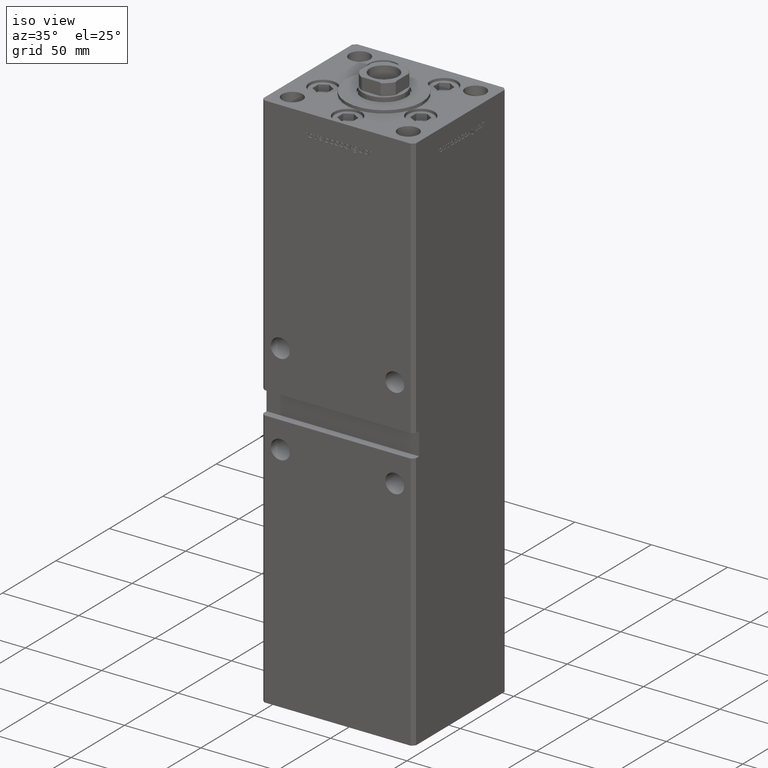
[diagram: clean part render]
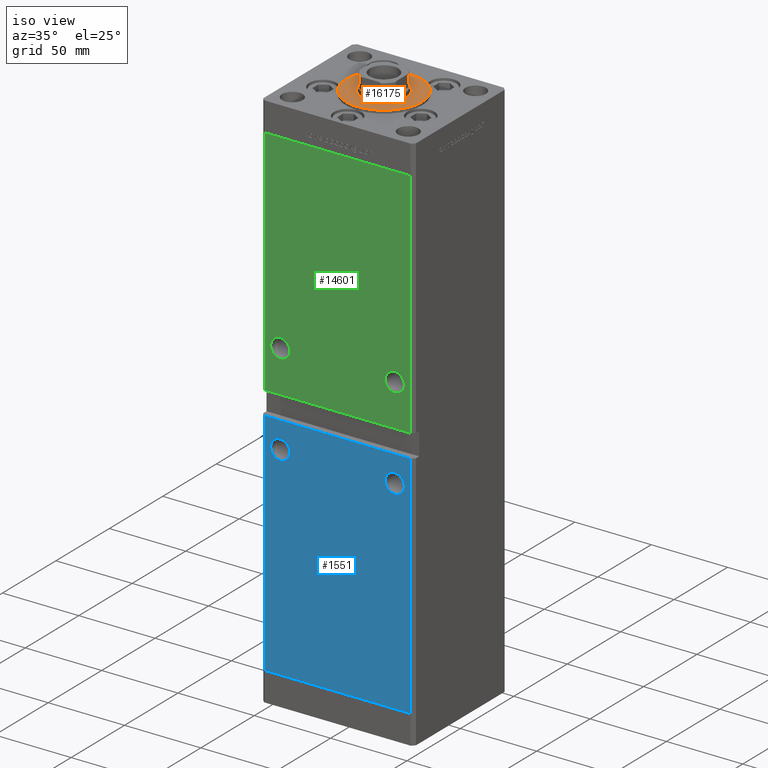
[diagram: same view with three faces highlighted in distinct colors, each labeled with its STEP entity id]
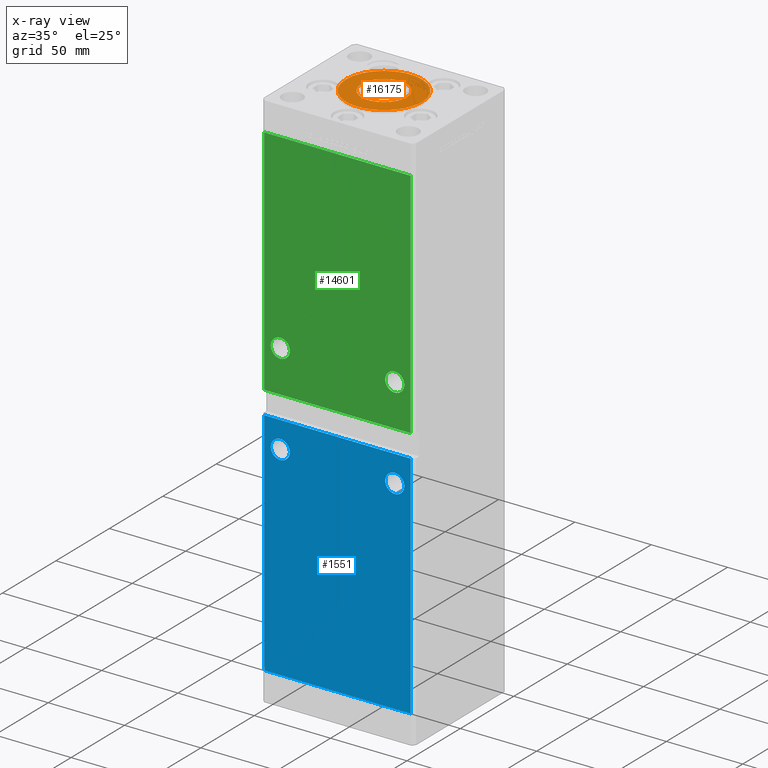
[diagram: x-ray of the same camera — body ghosted, the three highlighted faces saturated]
A machine part, iso view with three faces highlighted in distinct colors.
The next image is the same camera in x-ray (body ghosted, the three faces saturated) — at least one of them is partly hidden behind the body in this view.
Their STEP definitions:

[orange] entity #16175 — the highlighted planar face has unit normal (0, 0, 1).
#13 = EDGE_CURVE ( 'NONE', #21800, #1508, #15795, .T. ) ;
#386 = AXIS2_PLACEMENT_3D ( 'NONE', #31879, #23035, #44521 ) ;
#1508 = VERTEX_POINT ( 'NONE', #10641 ) ;
#2179 = DIRECTION ( 'NONE',  ( 1.000000000000000000, 0.000000000000000000, -0.000000000000000000 ) ) ;
#3743 = DIRECTION ( 'NONE',  ( 1.000000000000000000, 0.000000000000000000, 0.000000000000000000 ) ) ;
#7221 = CARTESIAN_POINT ( 'NONE',  ( 0.000000000000000000, -6.938893903907228378E-15, 2.000000000000000000 ) ) ;
#7259 = CIRCLE ( 'NONE', #386, 14.75000000000000178 ) ;
#7325 = CARTESIAN_POINT ( 'NONE',  ( -14.75000000000000178, -5.132539875164881787E-15, 2.000000000000000000 ) ) ;
#7763 = DIRECTION ( 'NONE',  ( 1.000000000000000000, 0.000000000000000000, 0.000000000000000000 ) ) ;
#8135 = CARTESIAN_POINT ( 'NONE',  ( -25.00000000000000000, -6.938893903907228378E-15, 2.000000000000000000 ) ) ;
#10407 = EDGE_CURVE ( 'NONE', #24324, #12368, #17324, .T. ) ;
#10641 = CARTESIAN_POINT ( 'NONE',  ( 25.00000000000000000, -3.877276906038844941E-15, 2.000000000000000000 ) ) ;
#10724 = DIRECTION ( 'NONE',  ( 0.000000000000000000, 0.000000000000000000, 1.000000000000000000 ) ) ;
#12368 = VERTEX_POINT ( 'NONE', #7325 ) ;
#14542 = FACE_OUTER_BOUND ( 'NONE', #22095, .T. ) ;
#15190 = DIRECTION ( 'NONE',  ( 1.000000000000000000, 0.000000000000000000, 0.000000000000000000 ) ) ;
#15208 = EDGE_CURVE ( 'NONE', #1508, #21800, #32786, .T. ) ;
#15795 = CIRCLE ( 'NONE', #22653, 25.00000000000000000 ) ;
#16175 = ADVANCED_FACE ( 'NONE', ( #42751, #14542 ), #27850, .T. ) ;
#17324 = CIRCLE ( 'NONE', #33611, 14.75000000000000178 ) ;
#18304 = CARTESIAN_POINT ( 'NONE',  ( 0.000000000000000000, -6.938893903907228378E-15, 2.000000000000000000 ) ) ;
#21218 = EDGE_CURVE ( 'NONE', #12368, #24324, #7259, .T. ) ;
#21800 = VERTEX_POINT ( 'NONE', #8135 ) ;
#22095 = EDGE_LOOP ( 'NONE', ( #34695, #29843 ) ) ;
#22653 = AXIS2_PLACEMENT_3D ( 'NONE', #48480, #23228, #15190 ) ;
#23035 = DIRECTION ( 'NONE',  ( 0.000000000000000000, 0.000000000000000000, 1.000000000000000000 ) ) ;
#23228 = DIRECTION ( 'NONE',  ( 0.000000000000000000, 0.000000000000000000, 1.000000000000000000 ) ) ;
#24153 = CARTESIAN_POINT ( 'NONE',  ( 0.000000000000000000, -6.938893903907228378E-15, 2.000000000000000000 ) ) ;
#24324 = VERTEX_POINT ( 'NONE', #51241 ) ;
#26773 = AXIS2_PLACEMENT_3D ( 'NONE', #24153, #40539, #3743 ) ;
#27850 = PLANE ( 'NONE',  #51701 ) ;
#29843 = ORIENTED_EDGE ( 'NONE', *, *, #15208, .T. ) ;
#31879 = CARTESIAN_POINT ( 'NONE',  ( 0.000000000000000000, -6.938893903907228378E-15, 2.000000000000000000 ) ) ;
#32786 = CIRCLE ( 'NONE', #26773, 25.00000000000000000 ) ;
#33611 = AXIS2_PLACEMENT_3D ( 'NONE', #7221, #10724, #7763 ) ;
#34695 = ORIENTED_EDGE ( 'NONE', *, *, #13, .T. ) ;
#35922 = DIRECTION ( 'NONE',  ( 0.000000000000000000, 0.000000000000000000, 1.000000000000000000 ) ) ;
#36267 = ORIENTED_EDGE ( 'NONE', *, *, #21218, .F. ) ;
#38647 = EDGE_LOOP ( 'NONE', ( #48857, #36267 ) ) ;
#40539 = DIRECTION ( 'NONE',  ( 0.000000000000000000, 0.000000000000000000, 1.000000000000000000 ) ) ;
#42751 = FACE_BOUND ( 'NONE', #38647, .T. ) ;
#44521 = DIRECTION ( 'NONE',  ( 1.000000000000000000, 0.000000000000000000, 0.000000000000000000 ) ) ;
#48480 = CARTESIAN_POINT ( 'NONE',  ( 0.000000000000000000, -6.938893903907228378E-15, 2.000000000000000000 ) ) ;
#48857 = ORIENTED_EDGE ( 'NONE', *, *, #10407, .F. ) ;
#51241 = CARTESIAN_POINT ( 'NONE',  ( 14.75000000000000178, -6.938893903907228378E-15, 2.000000000000000000 ) ) ;
#51701 = AXIS2_PLACEMENT_3D ( 'NONE', #18304, #35922, #2179 ) ;

[blue] entity #1551 — the highlighted planar face has unit normal (0, 1, 0).
#487 = EDGE_CURVE ( 'NONE', #8644, #1438, #15525, .T. ) ;
#898 = EDGE_CURVE ( 'NONE', #1438, #2993, #41999, .T. ) ;
#1017 = VERTEX_POINT ( 'NONE', #30653 ) ;
#1438 = VERTEX_POINT ( 'NONE', #27009 ) ;
#1551 = ADVANCED_FACE ( 'NONE', ( #35340, #35083, #51480 ), #47444, .F. ) ;
#1792 = DIRECTION ( 'NONE',  ( 0.000000000000000000, 1.000000000000000000, 0.000000000000000000 ) ) ;
#2579 = DIRECTION ( 'NONE',  ( 0.000000000000000000, -0.000000000000000000, 1.000000000000000000 ) ) ;
#2993 = VERTEX_POINT ( 'NONE', #38734 ) ;
#3482 = CARTESIAN_POINT ( 'NONE',  ( -47.99999999999998579, -43.50000000000000000, 0.000000000000000000 ) ) ;
#4571 = CARTESIAN_POINT ( 'NONE',  ( -37.50000000000000000, -43.50000000000000000, 127.2500000000000000 ) ) ;
#7279 = LINE ( 'NONE', #19638, #25008 ) ;
#8041 = AXIS2_PLACEMENT_3D ( 'NONE', #35771, #47609, #43837 ) ;
#8644 = VERTEX_POINT ( 'NONE', #14949 ) ;
#9225 = DIRECTION ( 'NONE',  ( 0.000000000000000000, 1.000000000000000000, 0.000000000000000000 ) ) ;
#9353 = VERTEX_POINT ( 'NONE', #4571 ) ;
#9596 = CARTESIAN_POINT ( 'NONE',  ( -37.50000000000000000, -43.50000000000000000, 133.5000000000000000 ) ) ;
#10127 = EDGE_CURVE ( 'NONE', #8644, #49620, #7279, .T. ) ;
#10906 = CARTESIAN_POINT ( 'NONE',  ( -47.99999999999998579, -43.50000000000000000, 318.5000000000000000 ) ) ;
#11317 = EDGE_CURVE ( 'NONE', #49620, #2993, #52419, .T. ) ;
#14669 = VECTOR ( 'NONE', #52957, 1000.000000000000000 ) ;
#14949 = CARTESIAN_POINT ( 'NONE',  ( -47.99999999999998579, -43.50000000000000000, 151.0000000000000000 ) ) ;
#15525 = LINE ( 'NONE', #24107, #44091 ) ;
#16059 = DIRECTION ( 'NONE',  ( 1.000000000000000000, 0.000000000000000000, 0.000000000000000000 ) ) ;
#16687 = VECTOR ( 'NONE', #41463, 1000.000000000000000 ) ;
#17279 = EDGE_CURVE ( 'NONE', #9353, #1017, #43157, .T. ) ;
#18313 = ORIENTED_EDGE ( 'NONE', *, *, #898, .F. ) ;
#18458 = CIRCLE ( 'NONE', #36461, 6.250000000000005329 ) ;
#18564 = EDGE_CURVE ( 'NONE', #50627, #48959, #27701, .T. ) ;
#18611 = CIRCLE ( 'NONE', #28905, 6.250000000000005329 ) ;
#19638 = CARTESIAN_POINT ( 'NONE',  ( -47.99999999999998579, -43.50000000000000000, 318.5000000000000000 ) ) ;
#20314 = DIRECTION ( 'NONE',  ( 0.000000000000000000, 0.000000000000000000, 1.000000000000000000 ) ) ;
#20579 = CARTESIAN_POINT ( 'NONE',  ( -37.50000000000000000, -43.50000000000000000, 133.5000000000000000 ) ) ;
#24107 = CARTESIAN_POINT ( 'NONE',  ( -49.99999999999998579, -43.50000000000000000, 151.0000000000000000 ) ) ;
#25008 = VECTOR ( 'NONE', #36005, 1000.000000000000000 ) ;
#25494 = ORIENTED_EDGE ( 'NONE', *, *, #11317, .T. ) ;
#27009 = CARTESIAN_POINT ( 'NONE',  ( 47.99999999999995737, -43.50000000000000000, 151.0000000000000000 ) ) ;
#27701 = CIRCLE ( 'NONE', #8041, 6.250000000000005329 ) ;
#28905 = AXIS2_PLACEMENT_3D ( 'NONE', #46277, #9225, #42247 ) ;
#28994 = EDGE_CURVE ( 'NONE', #1017, #9353, #18458, .T. ) ;
#29764 = EDGE_LOOP ( 'NONE', ( #38538, #31182 ) ) ;
#30077 = ORIENTED_EDGE ( 'NONE', *, *, #33766, .T. ) ;
#30653 = CARTESIAN_POINT ( 'NONE',  ( -37.50000000000000000, -43.50000000000000000, 139.7500000000000000 ) ) ;
#31182 = ORIENTED_EDGE ( 'NONE', *, *, #17279, .T. ) ;
#31906 = CARTESIAN_POINT ( 'NONE',  ( 37.50000000000000000, -43.50000000000000000, 127.2500000000000000 ) ) ;
#33397 = CARTESIAN_POINT ( 'NONE',  ( 47.99999999999998579, -43.50000000000000000, 318.5000000000000000 ) ) ;
#33766 = EDGE_CURVE ( 'NONE', #48959, #50627, #18611, .T. ) ;
#35083 = FACE_BOUND ( 'NONE', #46413, .T. ) ;
#35340 = FACE_BOUND ( 'NONE', #29764, .T. ) ;
#35771 = CARTESIAN_POINT ( 'NONE',  ( 37.50000000000000000, -43.50000000000000000, 133.5000000000000000 ) ) ;
#36005 = DIRECTION ( 'NONE',  ( -0.000000000000000000, -0.000000000000000000, -1.000000000000000000 ) ) ;
#36461 = AXIS2_PLACEMENT_3D ( 'NONE', #9596, #1792, #50687 ) ;
#38368 = ORIENTED_EDGE ( 'NONE', *, *, #18564, .T. ) ;
#38528 = ORIENTED_EDGE ( 'NONE', *, *, #10127, .T. ) ;
#38538 = ORIENTED_EDGE ( 'NONE', *, *, #28994, .T. ) ;
#38734 = CARTESIAN_POINT ( 'NONE',  ( 47.99999999999998579, -43.50000000000000000, 0.000000000000000000 ) ) ;
#39334 = ORIENTED_EDGE ( 'NONE', *, *, #487, .F. ) ;
#40906 = EDGE_LOOP ( 'NONE', ( #18313, #39334, #38528, #25494 ) ) ;
#41423 = AXIS2_PLACEMENT_3D ( 'NONE', #20579, #53102, #20314 ) ;
#41463 = DIRECTION ( 'NONE',  ( -0.000000000000000000, -0.000000000000000000, -1.000000000000000000 ) ) ;
#41999 = LINE ( 'NONE', #33397, #16687 ) ;
#42247 = DIRECTION ( 'NONE',  ( 0.000000000000000000, 0.000000000000000000, 1.000000000000000000 ) ) ;
#43157 = CIRCLE ( 'NONE', #41423, 6.250000000000005329 ) ;
#43837 = DIRECTION ( 'NONE',  ( 0.000000000000000000, 0.000000000000000000, 1.000000000000000000 ) ) ;
#44059 = CARTESIAN_POINT ( 'NONE',  ( 37.50000000000000000, -43.50000000000000000, 139.7500000000000000 ) ) ;
#44091 = VECTOR ( 'NONE', #16059, 1000.000000000000000 ) ;
#44620 = CARTESIAN_POINT ( 'NONE',  ( -47.99999999999998579, -43.50000000000000000, 0.000000000000000000 ) ) ;
#45020 = AXIS2_PLACEMENT_3D ( 'NONE', #10906, #47705, #2579 ) ;
#46277 = CARTESIAN_POINT ( 'NONE',  ( 37.50000000000000000, -43.50000000000000000, 133.5000000000000000 ) ) ;
#46413 = EDGE_LOOP ( 'NONE', ( #38368, #30077 ) ) ;
#47444 = PLANE ( 'NONE',  #45020 ) ;
#47609 = DIRECTION ( 'NONE',  ( 0.000000000000000000, 1.000000000000000000, 0.000000000000000000 ) ) ;
#47705 = DIRECTION ( 'NONE',  ( 0.000000000000000000, 1.000000000000000000, 0.000000000000000000 ) ) ;
#48959 = VERTEX_POINT ( 'NONE', #31906 ) ;
#49620 = VERTEX_POINT ( 'NONE', #3482 ) ;
#50627 = VERTEX_POINT ( 'NONE', #44059 ) ;
#50687 = DIRECTION ( 'NONE',  ( 0.000000000000000000, 0.000000000000000000, 1.000000000000000000 ) ) ;
#51480 = FACE_OUTER_BOUND ( 'NONE', #40906, .T. ) ;
#52419 = LINE ( 'NONE', #44620, #14669 ) ;
#52957 = DIRECTION ( 'NONE',  ( 1.000000000000000000, 0.000000000000000000, 0.000000000000000000 ) ) ;
#53102 = DIRECTION ( 'NONE',  ( 0.000000000000000000, 1.000000000000000000, 0.000000000000000000 ) ) ;

[green] entity #14601 — the highlighted planar face has unit normal (0, 1, 0).
#314 = CARTESIAN_POINT ( 'NONE',  ( 37.50000000000000000, -43.50000000000000000, 199.7500000000000000 ) ) ;
#1232 = VECTOR ( 'NONE', #20535, 1000.000000000000000 ) ;
#1332 = EDGE_CURVE ( 'NONE', #1500, #37170, #44126, .T. ) ;
#1500 = VERTEX_POINT ( 'NONE', #6885 ) ;
#2035 = LINE ( 'NONE', #34277, #43459 ) ;
#2382 = DIRECTION ( 'NONE',  ( 0.000000000000000000, 0.000000000000000000, 1.000000000000000000 ) ) ;
#2540 = EDGE_CURVE ( 'NONE', #46309, #46536, #31312, .T. ) ;
#3553 = EDGE_CURVE ( 'NONE', #30568, #20317, #44948, .T. ) ;
#3850 = DIRECTION ( 'NONE',  ( -1.000000000000000000, -0.000000000000000000, -0.000000000000000000 ) ) ;
#3974 = VECTOR ( 'NONE', #43196, 1000.000000000000000 ) ;
#4077 = CARTESIAN_POINT ( 'NONE',  ( 37.50000000000000000, -43.50000000000000000, 187.2500000000000000 ) ) ;
#6143 = FACE_BOUND ( 'NONE', #18122, .T. ) ;
#6885 = CARTESIAN_POINT ( 'NONE',  ( -37.50000000000000000, -43.50000000000000000, 199.7500000000000000 ) ) ;
#7634 = CARTESIAN_POINT ( 'NONE',  ( -49.99999999999997158, -43.50000000000000000, 166.0000000000000000 ) ) ;
#7715 = EDGE_LOOP ( 'NONE', ( #18092, #26091, #25241, #27639 ) ) ;
#8599 = DIRECTION ( 'NONE',  ( 0.000000000000000000, 0.000000000000000000, 1.000000000000000000 ) ) ;
#8862 = DIRECTION ( 'NONE',  ( 0.000000000000000000, 1.000000000000000000, 0.000000000000000000 ) ) ;
#8956 = ORIENTED_EDGE ( 'NONE', *, *, #1332, .T. ) ;
#10429 = CARTESIAN_POINT ( 'NONE',  ( -47.99999999999998579, -43.50000000000000000, 318.5000000000000000 ) ) ;
#11876 = VERTEX_POINT ( 'NONE', #22702 ) ;
#14601 = ADVANCED_FACE ( 'NONE', ( #47485, #6143, #14715 ), #38631, .F. ) ;
#14715 = FACE_OUTER_BOUND ( 'NONE', #7715, .T. ) ;
#16250 = CARTESIAN_POINT ( 'NONE',  ( 47.99999999999998579, -43.50000000000000000, 318.5000000000000000 ) ) ;
#16382 = ORIENTED_EDGE ( 'NONE', *, *, #49638, .T. ) ;
#18092 = ORIENTED_EDGE ( 'NONE', *, *, #44053, .T. ) ;
#18122 = EDGE_LOOP ( 'NONE', ( #8956, #16382 ) ) ;
#18956 = DIRECTION ( 'NONE',  ( 1.000000000000000000, 0.000000000000000000, 0.000000000000000000 ) ) ;
#19266 = LINE ( 'NONE', #10429, #3974 ) ;
#19683 = VERTEX_POINT ( 'NONE', #37652 ) ;
#20317 = VERTEX_POINT ( 'NONE', #31347 ) ;
#20535 = DIRECTION ( 'NONE',  ( -0.000000000000000000, -0.000000000000000000, -1.000000000000000000 ) ) ;
#21531 = EDGE_CURVE ( 'NONE', #11876, #30568, #27257, .T. ) ;
#22060 = AXIS2_PLACEMENT_3D ( 'NONE', #51138, #29650, #42810 ) ;
#22702 = CARTESIAN_POINT ( 'NONE',  ( 47.99999999999998579, -43.50000000000000000, 318.5000000000000000 ) ) ;
#25241 = ORIENTED_EDGE ( 'NONE', *, *, #21531, .F. ) ;
#25377 = DIRECTION ( 'NONE',  ( 0.000000000000000000, 1.000000000000000000, 0.000000000000000000 ) ) ;
#26091 = ORIENTED_EDGE ( 'NONE', *, *, #3553, .F. ) ;
#26311 = AXIS2_PLACEMENT_3D ( 'NONE', #46443, #8862, #8599 ) ;
#26560 = DIRECTION ( 'NONE',  ( 0.000000000000000000, 1.000000000000000000, 0.000000000000000000 ) ) ;
#26726 = AXIS2_PLACEMENT_3D ( 'NONE', #50990, #34856, #31089 ) ;
#27257 = LINE ( 'NONE', #16250, #1232 ) ;
#27639 = ORIENTED_EDGE ( 'NONE', *, *, #50016, .F. ) ;
#27852 = AXIS2_PLACEMENT_3D ( 'NONE', #45803, #25377, #41238 ) ;
#29650 = DIRECTION ( 'NONE',  ( 0.000000000000000000, 1.000000000000000000, 0.000000000000000000 ) ) ;
#30568 = VERTEX_POINT ( 'NONE', #35722 ) ;
#31089 = DIRECTION ( 'NONE',  ( 0.000000000000000000, -0.000000000000000000, 1.000000000000000000 ) ) ;
#31312 = CIRCLE ( 'NONE', #27852, 6.250000000000005329 ) ;
#31347 = CARTESIAN_POINT ( 'NONE',  ( -47.99999999999998579, -43.50000000000000000, 166.0000000000000000 ) ) ;
#32116 = AXIS2_PLACEMENT_3D ( 'NONE', #43480, #26560, #2382 ) ;
#34025 = CIRCLE ( 'NONE', #26311, 6.250000000000005329 ) ;
#34277 = CARTESIAN_POINT ( 'NONE',  ( -47.99999999999998579, -43.50000000000000000, 318.5000000000000000 ) ) ;
#34415 = ORIENTED_EDGE ( 'NONE', *, *, #47363, .T. ) ;
#34768 = VECTOR ( 'NONE', #3850, 1000.000000000000000 ) ;
#34856 = DIRECTION ( 'NONE',  ( 0.000000000000000000, 1.000000000000000000, 0.000000000000000000 ) ) ;
#35722 = CARTESIAN_POINT ( 'NONE',  ( 47.99999999999998579, -43.50000000000000000, 166.0000000000000000 ) ) ;
#37170 = VERTEX_POINT ( 'NONE', #53145 ) ;
#37652 = CARTESIAN_POINT ( 'NONE',  ( -47.99999999999998579, -43.50000000000000000, 318.5000000000000000 ) ) ;
#38631 = PLANE ( 'NONE',  #26726 ) ;
#40470 = EDGE_LOOP ( 'NONE', ( #34415, #40646 ) ) ;
#40646 = ORIENTED_EDGE ( 'NONE', *, *, #2540, .T. ) ;
#41238 = DIRECTION ( 'NONE',  ( 0.000000000000000000, 0.000000000000000000, 1.000000000000000000 ) ) ;
#42810 = DIRECTION ( 'NONE',  ( 0.000000000000000000, 0.000000000000000000, 1.000000000000000000 ) ) ;
#43196 = DIRECTION ( 'NONE',  ( -0.000000000000000000, -0.000000000000000000, -1.000000000000000000 ) ) ;
#43459 = VECTOR ( 'NONE', #18956, 1000.000000000000000 ) ;
#43480 = CARTESIAN_POINT ( 'NONE',  ( -37.50000000000000000, -43.50000000000000000, 193.5000000000000000 ) ) ;
#44053 = EDGE_CURVE ( 'NONE', #19683, #20317, #19266, .T. ) ;
#44126 = CIRCLE ( 'NONE', #32116, 6.250000000000005329 ) ;
#44948 = LINE ( 'NONE', #7634, #34768 ) ;
#45229 = CIRCLE ( 'NONE', #22060, 6.250000000000005329 ) ;
#45803 = CARTESIAN_POINT ( 'NONE',  ( 37.50000000000000000, -43.50000000000000000, 193.5000000000000000 ) ) ;
#46309 = VERTEX_POINT ( 'NONE', #4077 ) ;
#46443 = CARTESIAN_POINT ( 'NONE',  ( -37.50000000000000000, -43.50000000000000000, 193.5000000000000000 ) ) ;
#46536 = VERTEX_POINT ( 'NONE', #314 ) ;
#47363 = EDGE_CURVE ( 'NONE', #46536, #46309, #45229, .T. ) ;
#47485 = FACE_BOUND ( 'NONE', #40470, .T. ) ;
#49638 = EDGE_CURVE ( 'NONE', #37170, #1500, #34025, .T. ) ;
#50016 = EDGE_CURVE ( 'NONE', #19683, #11876, #2035, .T. ) ;
#50990 = CARTESIAN_POINT ( 'NONE',  ( -47.99999999999998579, -43.50000000000000000, 318.5000000000000000 ) ) ;
#51138 = CARTESIAN_POINT ( 'NONE',  ( 37.50000000000000000, -43.50000000000000000, 193.5000000000000000 ) ) ;
#53145 = CARTESIAN_POINT ( 'NONE',  ( -37.50000000000000000, -43.50000000000000000, 187.2500000000000000 ) ) ;